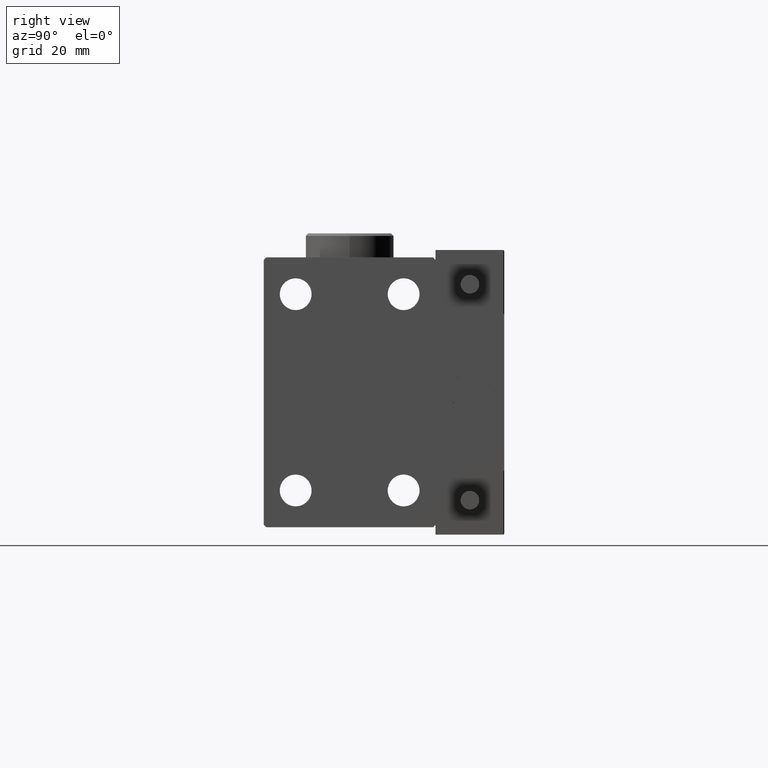
[diagram: clean part render]
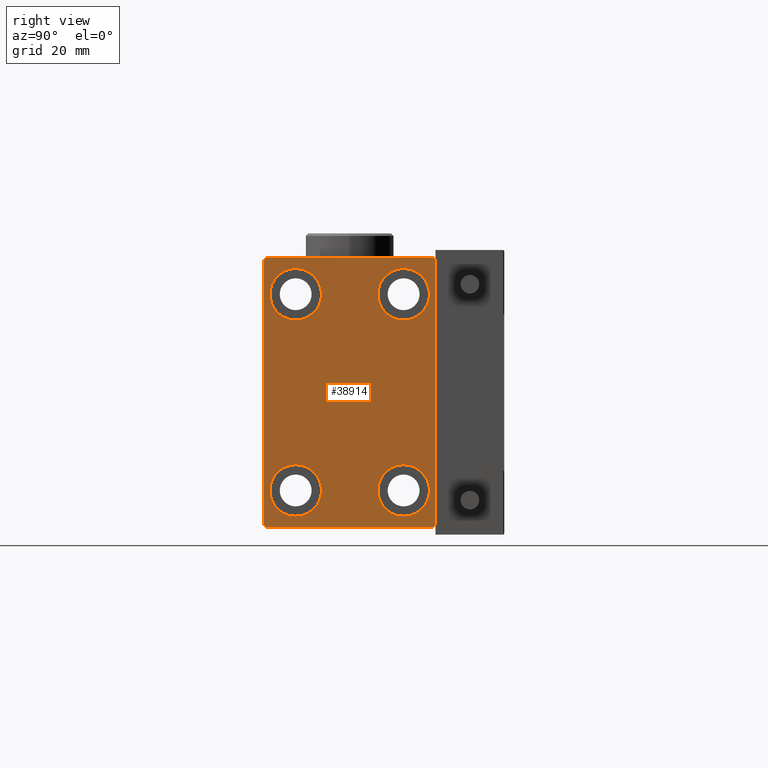
[diagram: same view with one face highlighted and labeled with its STEP entity id]
A machine part, right view. The second image highlights one B-rep face of the part: STEP entity #38914.
In plain terms, the highlighted planar face has unit normal (1, 0, 0).
Its self-contained STEP definition (entity closure, byte-faithful):
#70 = AXIS2_PLACEMENT_3D ( 'NONE', #28804, #16808, #15579 ) ;
#186 = DIRECTION ( 'NONE',  ( 0.000000000000000000, 0.000000000000000000, -1.000000000000000000 ) ) ;
#563 = AXIS2_PLACEMENT_3D ( 'NONE', #20005, #35881, #186 ) ;
#757 = CARTESIAN_POINT ( 'NONE',  ( 56.00000000000000000, 17.50000000000000000, 27.50000000000000355 ) ) ;
#799 = VERTEX_POINT ( 'NONE', #34272 ) ;
#2676 = CARTESIAN_POINT ( 'NONE',  ( 56.00000000000000000, -11.00000000000000355, -20.00000000000000000 ) ) ;
#2698 = VECTOR ( 'NONE', #15454, 1000.000000000000114 ) ;
#2756 = CARTESIAN_POINT ( 'NONE',  ( 56.00000000000000000, 17.50000000000000000, 26.99999999999999645 ) ) ;
#2923 = DIRECTION ( 'NONE',  ( 0.000000000000000000, 0.000000000000000000, 1.000000000000000000 ) ) ;
#2931 = EDGE_CURVE ( 'NONE', #35939, #4829, #32304, .T. ) ;
#3415 = VECTOR ( 'NONE', #8586, 1000.000000000000000 ) ;
#3558 = CIRCLE ( 'NONE', #51037, 5.250000000000000888 ) ;
#4829 = VERTEX_POINT ( 'NONE', #25664 ) ;
#5637 = DIRECTION ( 'NONE',  ( 0.000000000000000000, -1.261617073437677752E-16, 1.000000000000000000 ) ) ;
#6115 = CARTESIAN_POINT ( 'NONE',  ( 56.00000000000000000, -11.00000000000000355, 20.00000000000000000 ) ) ;
#6947 = AXIS2_PLACEMENT_3D ( 'NONE', #7095, #31323, #2923 ) ;
#7069 = DIRECTION ( 'NONE',  ( -1.000000000000000000, -0.000000000000000000, -0.000000000000000000 ) ) ;
#7095 = CARTESIAN_POINT ( 'NONE',  ( 56.00000000000000000, 11.00000000000000355, 20.00000000000000000 ) ) ;
#7412 = VECTOR ( 'NONE', #5637, 1000.000000000000000 ) ;
#7451 = AXIS2_PLACEMENT_3D ( 'NONE', #2676, #18047, #49844 ) ;
#7984 = CARTESIAN_POINT ( 'NONE',  ( 56.00000000000000000, 22.25000000000000355, 22.25000000000000355 ) ) ;
#7996 = VECTOR ( 'NONE', #28126, 1000.000000000000000 ) ;
#8015 = FACE_BOUND ( 'NONE', #35222, .T. ) ;
#8099 = CARTESIAN_POINT ( 'NONE',  ( 56.00000000000000000, 11.00000000000000355, -20.00000000000000000 ) ) ;
#8300 = EDGE_CURVE ( 'NONE', #4829, #10381, #11789, .T. ) ;
#8586 = DIRECTION ( 'NONE',  ( 0.000000000000000000, -1.000000000000000000, -1.982541115402065110E-16 ) ) ;
#9479 = VERTEX_POINT ( 'NONE', #9510 ) ;
#9510 = CARTESIAN_POINT ( 'NONE',  ( 56.00000000000000000, 17.00000000000000711, -27.50000000000000355 ) ) ;
#10008 = ORIENTED_EDGE ( 'NONE', *, *, #49935, .T. ) ;
#10381 = VERTEX_POINT ( 'NONE', #41027 ) ;
#10387 = EDGE_CURVE ( 'NONE', #38014, #14359, #39891, .T. ) ;
#10496 = VERTEX_POINT ( 'NONE', #14164 ) ;
#11374 = CARTESIAN_POINT ( 'NONE',  ( 56.00000000000000000, -11.00000000000000355, -25.25000000000000000 ) ) ;
#11789 = LINE ( 'NONE', #39146, #35651 ) ;
#11886 = ORIENTED_EDGE ( 'NONE', *, *, #15912, .T. ) ;
#11916 = FACE_BOUND ( 'NONE', #12178, .T. ) ;
#12147 = VERTEX_POINT ( 'NONE', #2756 ) ;
#12178 = EDGE_LOOP ( 'NONE', ( #44803, #11886 ) ) ;
#12467 = VECTOR ( 'NONE', #16462, 1000.000000000000114 ) ;
#13955 = VERTEX_POINT ( 'NONE', #44527 ) ;
#14026 = EDGE_CURVE ( 'NONE', #29748, #10496, #36707, .T. ) ;
#14164 = CARTESIAN_POINT ( 'NONE',  ( 56.00000000000000000, -16.99999999999999289, 27.49999999999999645 ) ) ;
#14359 = VERTEX_POINT ( 'NONE', #15214 ) ;
#14741 = ORIENTED_EDGE ( 'NONE', *, *, #10387, .T. ) ;
#14743 = DIRECTION ( 'NONE',  ( -1.000000000000000000, -0.000000000000000000, -0.000000000000000000 ) ) ;
#15214 = CARTESIAN_POINT ( 'NONE',  ( 56.00000000000000000, -11.00000000000000355, 25.25000000000000000 ) ) ;
#15424 = DIRECTION ( 'NONE',  ( -0.000000000000000000, 0.7071067811865474617, -0.7071067811865474617 ) ) ;
#15454 = DIRECTION ( 'NONE',  ( -0.000000000000000000, 0.7071067811865474617, 0.7071067811865474617 ) ) ;
#15579 = DIRECTION ( 'NONE',  ( 0.000000000000000000, 0.000000000000000000, 1.000000000000000000 ) ) ;
#15912 = EDGE_CURVE ( 'NONE', #799, #40950, #25815, .T. ) ;
#15973 = LINE ( 'NONE', #39430, #2698 ) ;
#16462 = DIRECTION ( 'NONE',  ( 0.000000000000000000, -0.7071067811865474617, -0.7071067811865474617 ) ) ;
#16558 = CARTESIAN_POINT ( 'NONE',  ( 56.00000000000000000, 11.00000000000000355, -14.75000000000000000 ) ) ;
#16725 = LINE ( 'NONE', #32628, #12467 ) ;
#16808 = DIRECTION ( 'NONE',  ( -1.000000000000000000, -0.000000000000000000, -0.000000000000000000 ) ) ;
#17805 = CARTESIAN_POINT ( 'NONE',  ( 56.00000000000000000, -17.50000000000000000, 26.99999999999998934 ) ) ;
#17824 = DIRECTION ( 'NONE',  ( -1.000000000000000000, -0.000000000000000000, -0.000000000000000000 ) ) ;
#17959 = CARTESIAN_POINT ( 'NONE',  ( 56.00000000000000000, 11.00000000000000355, 25.25000000000000000 ) ) ;
#18025 = ORIENTED_EDGE ( 'NONE', *, *, #8300, .T. ) ;
#18047 = DIRECTION ( 'NONE',  ( -1.000000000000000000, -0.000000000000000000, -0.000000000000000000 ) ) ;
#18178 = EDGE_LOOP ( 'NONE', ( #29528, #44912 ) ) ;
#18240 = EDGE_CURVE ( 'NONE', #10381, #9479, #46246, .T. ) ;
#18594 = ORIENTED_EDGE ( 'NONE', *, *, #47903, .T. ) ;
#19513 = CARTESIAN_POINT ( 'NONE',  ( 56.00000000000000000, 16.99999999999999289, 27.50000000000000355 ) ) ;
#19621 = ORIENTED_EDGE ( 'NONE', *, *, #51476, .T. ) ;
#19949 = AXIS2_PLACEMENT_3D ( 'NONE', #36154, #31997, #43980 ) ;
#20005 = CARTESIAN_POINT ( 'NONE',  ( 56.00000000000000000, 0.000000000000000000, 0.000000000000000000 ) ) ;
#20460 = EDGE_CURVE ( 'NONE', #9479, #13955, #15973, .T. ) ;
#21156 = EDGE_CURVE ( 'NONE', #30193, #47175, #3558, .T. ) ;
#21613 = AXIS2_PLACEMENT_3D ( 'NONE', #6115, #17824, #37119 ) ;
#21922 = ORIENTED_EDGE ( 'NONE', *, *, #18240, .T. ) ;
#22030 = CARTESIAN_POINT ( 'NONE',  ( 56.00000000000000000, -17.50000000000000000, -27.50000000000000355 ) ) ;
#22537 = CIRCLE ( 'NONE', #70, 5.250000000000000888 ) ;
#22638 = EDGE_CURVE ( 'NONE', #28417, #25246, #43532, .T. ) ;
#23919 = PLANE ( 'NONE',  #563 ) ;
#25246 = VERTEX_POINT ( 'NONE', #17959 ) ;
#25590 = DIRECTION ( 'NONE',  ( -1.000000000000000000, -0.000000000000000000, -0.000000000000000000 ) ) ;
#25664 = CARTESIAN_POINT ( 'NONE',  ( 56.00000000000000000, -17.50000000000000000, -26.99999999999999645 ) ) ;
#25685 = AXIS2_PLACEMENT_3D ( 'NONE', #8099, #7069, #27887 ) ;
#25815 = CIRCLE ( 'NONE', #32455, 5.250000000000000888 ) ;
#25920 = VECTOR ( 'NONE', #37904, 1000.000000000000000 ) ;
#26252 = CARTESIAN_POINT ( 'NONE',  ( 56.00000000000000000, 11.00000000000000355, -20.00000000000000000 ) ) ;
#26642 = EDGE_CURVE ( 'NONE', #12147, #29748, #51522, .T. ) ;
#27810 = FACE_OUTER_BOUND ( 'NONE', #51561, .T. ) ;
#27887 = DIRECTION ( 'NONE',  ( 0.000000000000000000, 0.000000000000000000, 1.000000000000000000 ) ) ;
#28126 = DIRECTION ( 'NONE',  ( 0.000000000000000000, 0.000000000000000000, -1.000000000000000000 ) ) ;
#28417 = VERTEX_POINT ( 'NONE', #39163 ) ;
#28804 = CARTESIAN_POINT ( 'NONE',  ( 56.00000000000000000, -11.00000000000000355, 20.00000000000000000 ) ) ;
#29488 = CARTESIAN_POINT ( 'NONE',  ( 56.00000000000000000, -11.00000000000000355, -20.00000000000000000 ) ) ;
#29528 = ORIENTED_EDGE ( 'NONE', *, *, #21156, .T. ) ;
#29748 = VERTEX_POINT ( 'NONE', #19513 ) ;
#29918 = CIRCLE ( 'NONE', #19949, 5.250000000000000888 ) ;
#30193 = VERTEX_POINT ( 'NONE', #31693 ) ;
#30697 = CIRCLE ( 'NONE', #25685, 5.250000000000000888 ) ;
#31077 = VECTOR ( 'NONE', #31702, 1000.000000000000114 ) ;
#31323 = DIRECTION ( 'NONE',  ( -1.000000000000000000, -0.000000000000000000, -0.000000000000000000 ) ) ;
#31693 = CARTESIAN_POINT ( 'NONE',  ( 56.00000000000000000, 11.00000000000000355, -25.25000000000000000 ) ) ;
#31702 = DIRECTION ( 'NONE',  ( -0.000000000000000000, -0.7071067811865474617, 0.7071067811865474617 ) ) ;
#31997 = DIRECTION ( 'NONE',  ( -1.000000000000000000, -0.000000000000000000, -0.000000000000000000 ) ) ;
#32304 = LINE ( 'NONE', #40363, #7996 ) ;
#32455 = AXIS2_PLACEMENT_3D ( 'NONE', #29488, #25590, #41453 ) ;
#32628 = CARTESIAN_POINT ( 'NONE',  ( 56.00000000000000000, -22.24999999999999645, 22.24999999999999645 ) ) ;
#34272 = CARTESIAN_POINT ( 'NONE',  ( 56.00000000000000000, -11.00000000000000355, -14.75000000000000000 ) ) ;
#34742 = ORIENTED_EDGE ( 'NONE', *, *, #22638, .T. ) ;
#35222 = EDGE_LOOP ( 'NONE', ( #34742, #40449 ) ) ;
#35651 = VECTOR ( 'NONE', #15424, 1000.000000000000114 ) ;
#35881 = DIRECTION ( 'NONE',  ( 1.000000000000000000, 0.000000000000000000, 0.000000000000000000 ) ) ;
#35939 = VERTEX_POINT ( 'NONE', #17805 ) ;
#36154 = CARTESIAN_POINT ( 'NONE',  ( 56.00000000000000000, 11.00000000000000355, 20.00000000000000000 ) ) ;
#36707 = LINE ( 'NONE', #757, #3415 ) ;
#37119 = DIRECTION ( 'NONE',  ( 0.000000000000000000, 0.000000000000000000, 1.000000000000000000 ) ) ;
#37146 = CARTESIAN_POINT ( 'NONE',  ( 56.00000000000000000, 17.50000000000000711, -27.50000000000000355 ) ) ;
#37656 = LINE ( 'NONE', #37146, #7412 ) ;
#37904 = DIRECTION ( 'NONE',  ( 0.000000000000000000, 1.000000000000000000, 0.000000000000000000 ) ) ;
#38014 = VERTEX_POINT ( 'NONE', #40036 ) ;
#38914 = ADVANCED_FACE ( 'NONE', ( #51555, #47622, #8015, #11916, #27810 ), #23919, .T. ) ;
#39046 = CIRCLE ( 'NONE', #7451, 5.250000000000000888 ) ;
#39146 = CARTESIAN_POINT ( 'NONE',  ( 56.00000000000000000, -22.25000000000000355, -22.25000000000000355 ) ) ;
#39163 = CARTESIAN_POINT ( 'NONE',  ( 56.00000000000000000, 11.00000000000000355, 14.75000000000000000 ) ) ;
#39430 = CARTESIAN_POINT ( 'NONE',  ( 56.00000000000000000, 22.25000000000000711, -22.25000000000000711 ) ) ;
#39618 = EDGE_LOOP ( 'NONE', ( #14741, #19621 ) ) ;
#39891 = CIRCLE ( 'NONE', #21613, 5.250000000000000888 ) ;
#40036 = CARTESIAN_POINT ( 'NONE',  ( 56.00000000000000000, -11.00000000000000355, 14.75000000000000000 ) ) ;
#40363 = CARTESIAN_POINT ( 'NONE',  ( 56.00000000000000000, -17.50000000000000000, 27.49999999999999645 ) ) ;
#40449 = ORIENTED_EDGE ( 'NONE', *, *, #45534, .T. ) ;
#40499 = ORIENTED_EDGE ( 'NONE', *, *, #14026, .T. ) ;
#40950 = VERTEX_POINT ( 'NONE', #11374 ) ;
#41012 = ORIENTED_EDGE ( 'NONE', *, *, #2931, .T. ) ;
#41027 = CARTESIAN_POINT ( 'NONE',  ( 56.00000000000000000, -16.99999999999999289, -27.50000000000000355 ) ) ;
#41453 = DIRECTION ( 'NONE',  ( 0.000000000000000000, 0.000000000000000000, 1.000000000000000000 ) ) ;
#42857 = EDGE_CURVE ( 'NONE', #47175, #30193, #30697, .T. ) ;
#43532 = CIRCLE ( 'NONE', #6947, 5.250000000000000888 ) ;
#43572 = ORIENTED_EDGE ( 'NONE', *, *, #20460, .T. ) ;
#43587 = ORIENTED_EDGE ( 'NONE', *, *, #26642, .T. ) ;
#43980 = DIRECTION ( 'NONE',  ( 0.000000000000000000, 0.000000000000000000, 1.000000000000000000 ) ) ;
#44527 = CARTESIAN_POINT ( 'NONE',  ( 56.00000000000000000, 17.50000000000000711, -27.00000000000000355 ) ) ;
#44803 = ORIENTED_EDGE ( 'NONE', *, *, #48419, .T. ) ;
#44912 = ORIENTED_EDGE ( 'NONE', *, *, #42857, .T. ) ;
#45531 = DIRECTION ( 'NONE',  ( 0.000000000000000000, 0.000000000000000000, 1.000000000000000000 ) ) ;
#45534 = EDGE_CURVE ( 'NONE', #25246, #28417, #29918, .T. ) ;
#46246 = LINE ( 'NONE', #22030, #25920 ) ;
#47175 = VERTEX_POINT ( 'NONE', #16558 ) ;
#47622 = FACE_BOUND ( 'NONE', #39618, .T. ) ;
#47903 = EDGE_CURVE ( 'NONE', #13955, #12147, #37656, .T. ) ;
#48419 = EDGE_CURVE ( 'NONE', #40950, #799, #39046, .T. ) ;
#49844 = DIRECTION ( 'NONE',  ( 0.000000000000000000, 0.000000000000000000, 1.000000000000000000 ) ) ;
#49935 = EDGE_CURVE ( 'NONE', #10496, #35939, #16725, .T. ) ;
#51037 = AXIS2_PLACEMENT_3D ( 'NONE', #26252, #14743, #45531 ) ;
#51476 = EDGE_CURVE ( 'NONE', #14359, #38014, #22537, .T. ) ;
#51522 = LINE ( 'NONE', #7984, #31077 ) ;
#51555 = FACE_BOUND ( 'NONE', #18178, .T. ) ;
#51561 = EDGE_LOOP ( 'NONE', ( #40499, #10008, #41012, #18025, #21922, #43572, #18594, #43587 ) ) ;